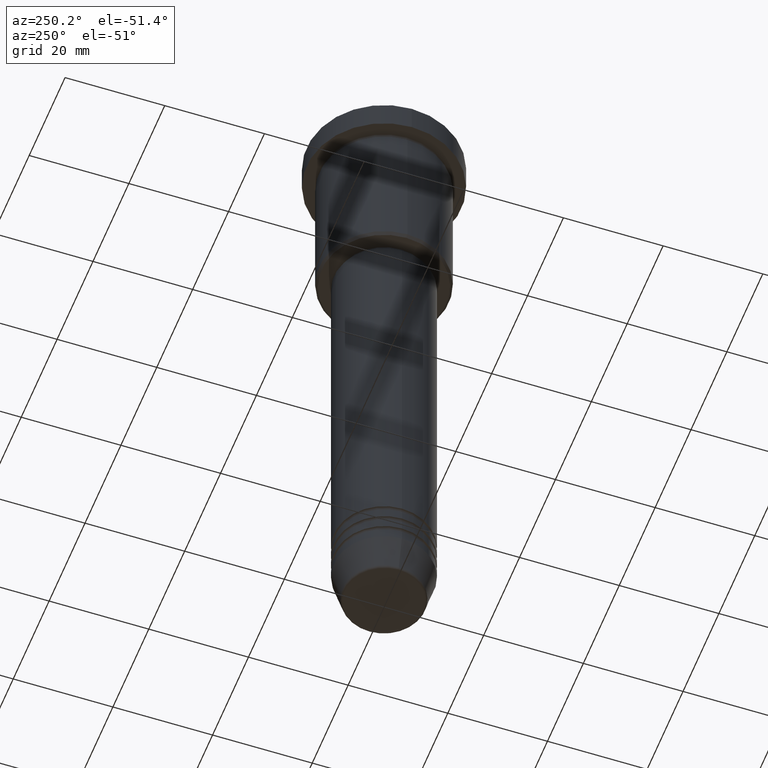
[diagram: clean part render]
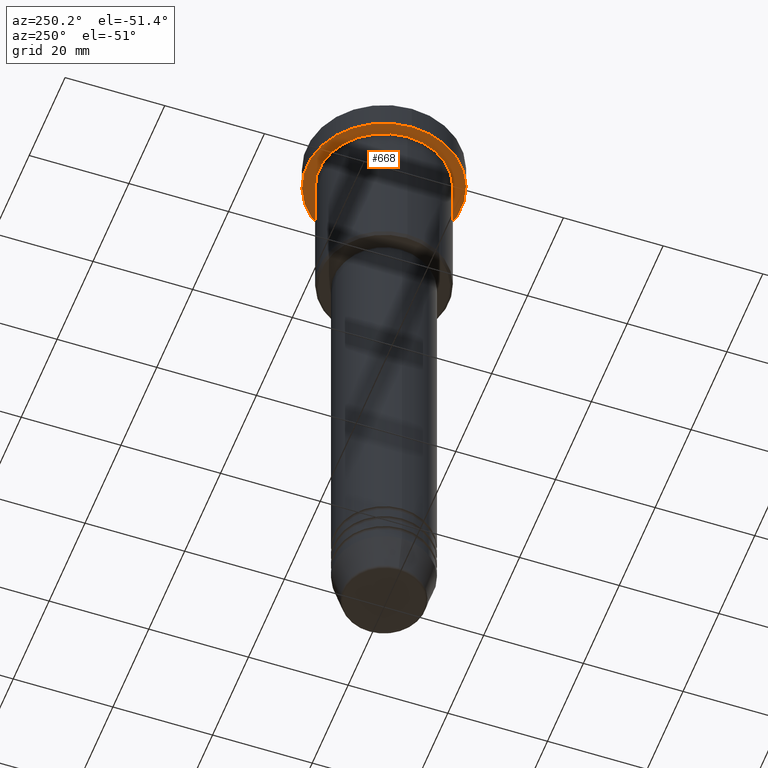
[diagram: same view with one face highlighted and labeled with its STEP entity id]
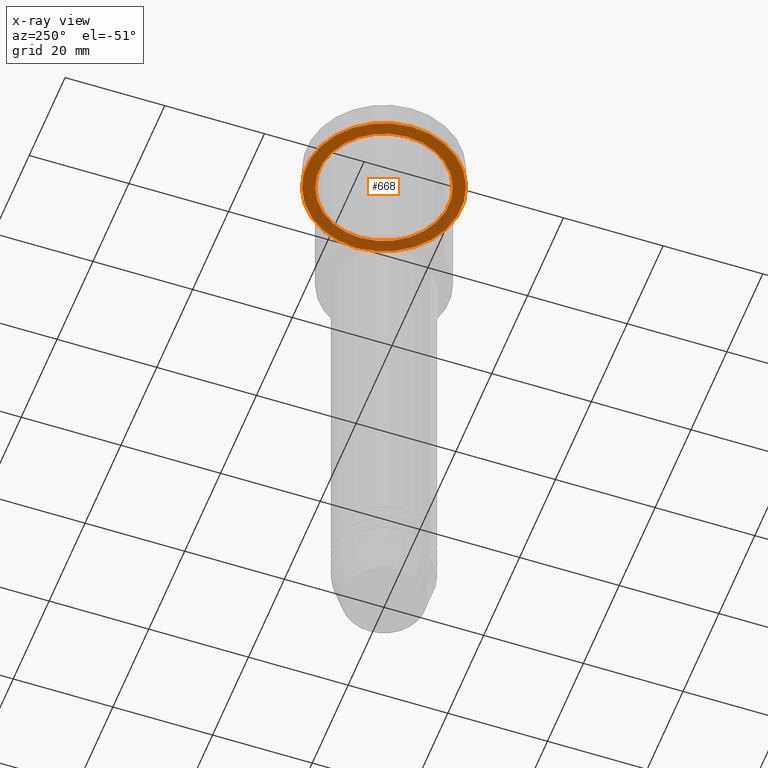
[diagram: x-ray of the same camera — body ghosted, the highlighted face saturated]
A machine part, auxiliary view. The second image highlights one B-rep face of the part: STEP entity #668.
The next image is the same camera in x-ray: the body ghosted, the highlighted face saturated — about 36% of this face is hidden behind the body in this view.
In plain terms, the highlighted planar face has unit normal (0, 0, -1).
Its self-contained STEP definition (entity closure, byte-faithful):
#18 = CARTESIAN_POINT ( 'NONE',  ( 0.000000000000000000, 0.000000000000000000, -5.999999999999995559 ) ) ;
#30 = VERTEX_POINT ( 'NONE', #218 ) ;
#32 = EDGE_CURVE ( 'NONE', #210, #947, #936, .T. ) ;
#87 = ORIENTED_EDGE ( 'NONE', *, *, #240, .F. ) ;
#128 = AXIS2_PLACEMENT_3D ( 'NONE', #18, #315, #1041 ) ;
#149 = CIRCLE ( 'NONE', #562, 15.50000000000000000 ) ;
#157 = DIRECTION ( 'NONE',  ( -0.000000000000000000, -0.000000000000000000, 1.000000000000000000 ) ) ;
#181 = CARTESIAN_POINT ( 'NONE',  ( 0.000000000000000000, 15.50000000000000000, -5.999999999999995559 ) ) ;
#210 = VERTEX_POINT ( 'NONE', #416 ) ;
#218 = CARTESIAN_POINT ( 'NONE',  ( 13.00000000000000000, 1.592040838891559095E-15, -5.999999999999994671 ) ) ;
#240 = EDGE_CURVE ( 'NONE', #947, #210, #149, .T. ) ;
#248 = CARTESIAN_POINT ( 'NONE',  ( 0.000000000000000000, 0.000000000000000000, -5.999999999999995559 ) ) ;
#315 = DIRECTION ( 'NONE',  ( -0.000000000000000000, -0.000000000000000000, 1.000000000000000000 ) ) ;
#316 = DIRECTION ( 'NONE',  ( -0.000000000000000000, -0.000000000000000000, 1.000000000000000000 ) ) ;
#331 = CIRCLE ( 'NONE', #827, 13.00000000000000000 ) ;
#336 = EDGE_LOOP ( 'NONE', ( #1151, #885 ) ) ;
#413 = DIRECTION ( 'NONE',  ( -1.000000000000000000, 0.000000000000000000, 0.000000000000000000 ) ) ;
#416 = CARTESIAN_POINT ( 'NONE',  ( 15.50000000000000000, 0.000000000000000000, -5.999999999999995559 ) ) ;
#447 = DIRECTION ( 'NONE',  ( 0.000000000000000000, 0.000000000000000000, -1.000000000000000000 ) ) ;
#459 = FACE_BOUND ( 'NONE', #336, .T. ) ;
#528 = PLANE ( 'NONE',  #601 ) ;
#562 = AXIS2_PLACEMENT_3D ( 'NONE', #1175, #157, #894 ) ;
#601 = AXIS2_PLACEMENT_3D ( 'NONE', #181, #447, #625 ) ;
#625 = DIRECTION ( 'NONE',  ( -1.000000000000000000, 0.000000000000000000, -0.000000000000000000 ) ) ;
#629 = FACE_OUTER_BOUND ( 'NONE', #1119, .T. ) ;
#668 = ADVANCED_FACE ( 'NONE', ( #459, #629 ), #528, .T. ) ;
#670 = CARTESIAN_POINT ( 'NONE',  ( -15.50000000000000000, 1.898202538678397557E-15, -5.999999999999995559 ) ) ;
#681 = CARTESIAN_POINT ( 'NONE',  ( -13.00000000000000000, 0.000000000000000000, -5.999999999999994671 ) ) ;
#709 = CIRCLE ( 'NONE', #789, 13.00000000000000000 ) ;
#789 = AXIS2_PLACEMENT_3D ( 'NONE', #248, #1130, #1138 ) ;
#827 = AXIS2_PLACEMENT_3D ( 'NONE', #870, #316, #413 ) ;
#870 = CARTESIAN_POINT ( 'NONE',  ( 0.000000000000000000, 0.000000000000000000, -5.999999999999995559 ) ) ;
#885 = ORIENTED_EDGE ( 'NONE', *, *, #1090, .T. ) ;
#894 = DIRECTION ( 'NONE',  ( 1.000000000000000000, 0.000000000000000000, 0.000000000000000000 ) ) ;
#936 = CIRCLE ( 'NONE', #128, 15.50000000000000000 ) ;
#947 = VERTEX_POINT ( 'NONE', #670 ) ;
#981 = ORIENTED_EDGE ( 'NONE', *, *, #32, .F. ) ;
#1029 = VERTEX_POINT ( 'NONE', #681 ) ;
#1041 = DIRECTION ( 'NONE',  ( 1.000000000000000000, 0.000000000000000000, 0.000000000000000000 ) ) ;
#1090 = EDGE_CURVE ( 'NONE', #30, #1029, #331, .T. ) ;
#1119 = EDGE_LOOP ( 'NONE', ( #981, #87 ) ) ;
#1123 = EDGE_CURVE ( 'NONE', #1029, #30, #709, .T. ) ;
#1130 = DIRECTION ( 'NONE',  ( -0.000000000000000000, -0.000000000000000000, 1.000000000000000000 ) ) ;
#1138 = DIRECTION ( 'NONE',  ( -1.000000000000000000, 0.000000000000000000, 0.000000000000000000 ) ) ;
#1151 = ORIENTED_EDGE ( 'NONE', *, *, #1123, .T. ) ;
#1175 = CARTESIAN_POINT ( 'NONE',  ( 0.000000000000000000, 0.000000000000000000, -5.999999999999995559 ) ) ;